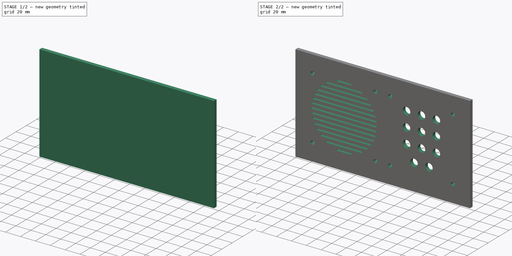
[diagram: build sequence overview — one tinted view per stage of 2, left to right]
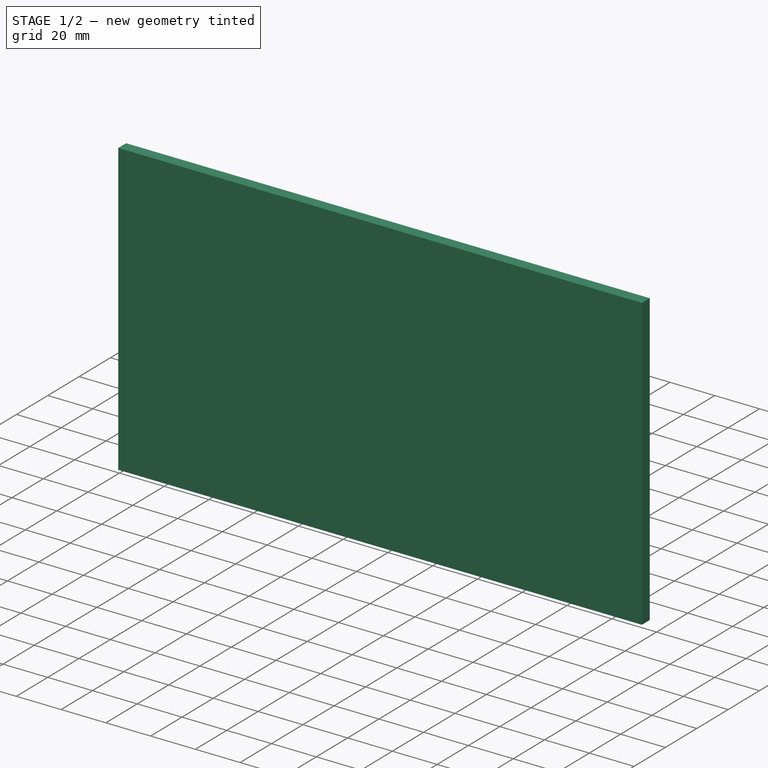
[diagram: stage 1 of 2 — iso view after this stage's code; geometry added in this stage tinted green]
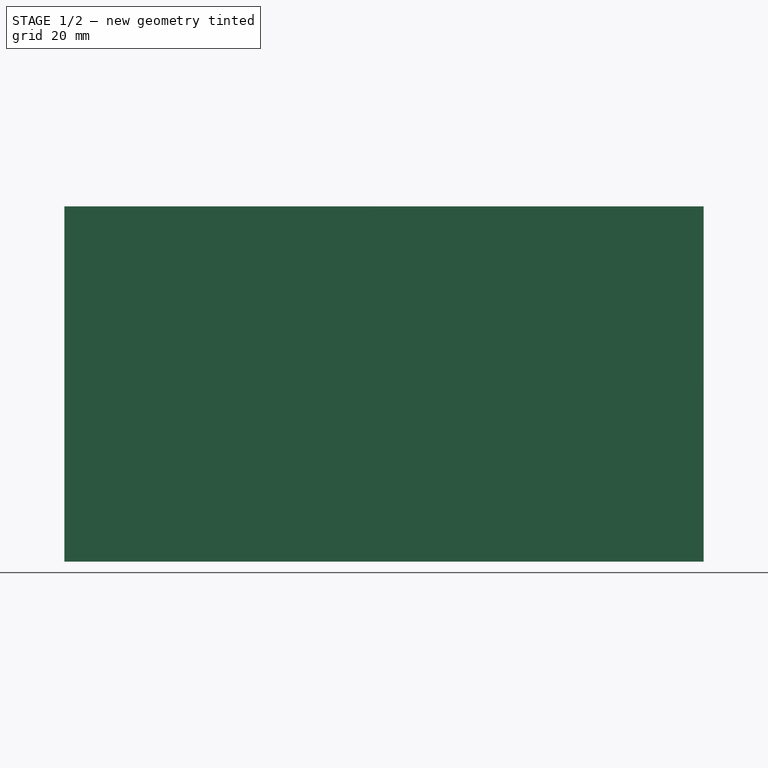
[diagram: stage 1 of 2 — front view after this stage's code; geometry added in this stage tinted green]
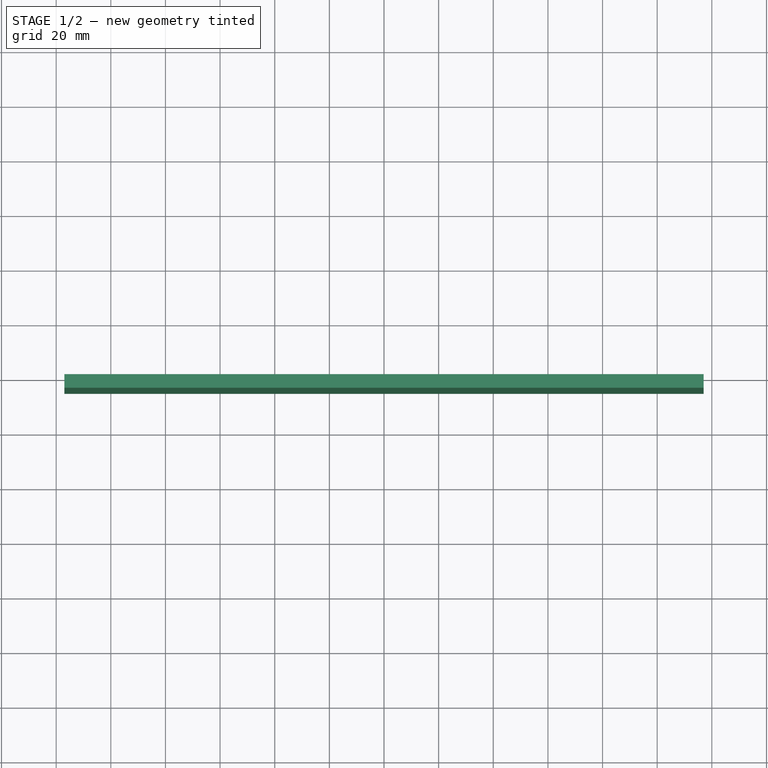
[diagram: stage 1 of 2 — top view after this stage's code; geometry added in this stage tinted green]
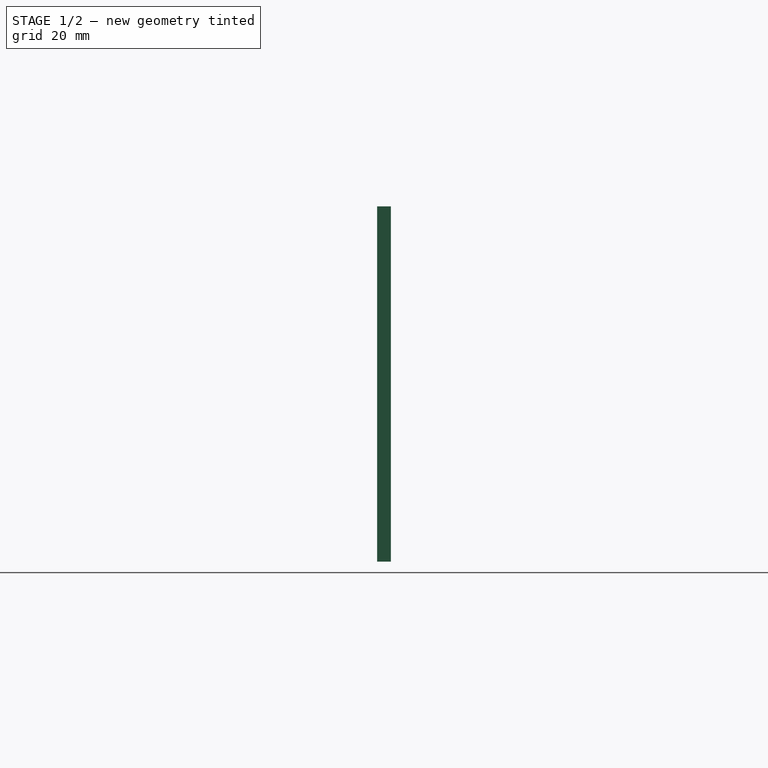
[diagram: stage 1 of 2 — right view after this stage's code; geometry added in this stage tinted green]
FCSTD DOCUMENT  (FreeCAD 0.18R16093 (Git))
Label: frontpanel
License: All rights reserved
LicenseURL: http://en.wikipedia.org/wiki/All_rights_reserved
objects: Sketcher::SketchObject×2, PartDesign::Pad×1, PartDesign::Pocket×1, PartDesign::Body×1, Drawing::FeatureViewPart×1, Drawing::FeaturePage×1
note: 7 computed .brp shape members not serialized (recipe doc carries the construction recipe); baked Part::Feature solids carry a one-line shape summary decoded from their .brp

FEATURE [Sketcher::SketchObject] Sketch002
  MapMode = 5
  Placement = pos=(0,-5,-5.17e-13) rot=(1,0,0;1.5708rad)
  sketch-geometry (81):
    g0: Circle CenterX=-94 CenterY=42 CenterZ=0 NormalX=0 NormalY=0 NormalZ=1 AngleXU=0 Radius=2.4
    g1: Circle CenterX=-10 CenterY=42 CenterZ=0 NormalX=0 NormalY=0 NormalZ=1 AngleXU=0 Radius=2.4
    g2: Circle CenterX=-10 CenterY=-42 CenterZ=0 NormalX=0 NormalY=0 NormalZ=1 AngleXU=0 Radius=2.4
    g3: Circle CenterX=-94 CenterY=-42 CenterZ=0 NormalX=0 NormalY=0 NormalZ=1 AngleXU=0 Radius=2.4
    g4: Circle CenterX=94 CenterY=42 CenterZ=0 NormalX=0 NormalY=0 NormalZ=1 AngleXU=0 Radius=2.4
    g5: Circle CenterX=10 CenterY=42 CenterZ=0 NormalX=0 NormalY=0 NormalZ=1 AngleXU=0 Radius=2.4
    g6: Circle CenterX=94 CenterY=-42 CenterZ=0 NormalX=0 NormalY=0 NormalZ=1 AngleXU=0 Radius=2.4
    g7: Circle CenterX=10 CenterY=-42 CenterZ=0 NormalX=0 NormalY=0 NormalZ=1 AngleXU=0 Radius=2.4
    g8: Circle [constr] CenterX=-52 CenterY=0 CenterZ=0 NormalX=0 NormalY=0 NormalZ=1 AngleXU=0 Radius=43
    g9: Circle CenterX=32 CenterY=30 CenterZ=0 NormalX=0 NormalY=0 NormalZ=1 AngleXU=0 Radius=5
    g10: Circle CenterX=52 CenterY=30 CenterZ=0 NormalX=0 NormalY=0 NormalZ=1 AngleXU=0 Radius=5
    g11: Circle CenterX=72 CenterY=30 CenterZ=0 NormalX=0 NormalY=0 NormalZ=1 AngleXU=0 Radius=5
    g12: Circle CenterX=32 CenterY=10 CenterZ=0 NormalX=0 NormalY=0 NormalZ=1 AngleXU=0 Radius=5
    g13: Circle CenterX=52 CenterY=10 CenterZ=0 NormalX=0 NormalY=0 NormalZ=1 AngleXU=0 Radius=5
    g14: Circle CenterX=72 CenterY=10 CenterZ=0 NormalX=0 NormalY=0 NormalZ=1 AngleXU=0 Radius=5
    g15: Circle CenterX=72 CenterY=-10 CenterZ=0 NormalX=0 NormalY=0 NormalZ=1 AngleXU=0 Radius=5
    g16: Circle CenterX=52 CenterY=-10 CenterZ=0 NormalX=0 NormalY=0 NormalZ=1 AngleXU=0 Radius=5
    g17: Circle CenterX=32 CenterY=-10 CenterZ=0 NormalX=0 NormalY=0 NormalZ=1 AngleXU=0 Radius=5
    g18: Circle CenterX=42 CenterY=-30 CenterZ=0 NormalX=0 NormalY=0 NormalZ=1 AngleXU=0 Radius=5
    g19: Circle CenterX=62 CenterY=-30 CenterZ=0 NormalX=0 NormalY=0 NormalZ=1 AngleXU=0 Radius=5
    g20: ArcOfCircle CenterX=-93.2916 CenterY=12 CenterZ=0 NormalX=0 NormalY=0 NormalZ=1 AngleXU=0 Radius=1 StartAngle=1.5708 EndAngle=4.71239
    g21: ArcOfCircle CenterX=-10.7084 CenterY=12 CenterZ=0 NormalX=0 NormalY=0 NormalZ=1 AngleXU=0 Radius=1 StartAngle=4.71239 EndAngle=7.85398
    g22: LineSegment StartX=-93.2916 StartY=11 StartZ=0 EndX=-10.7084 EndY=11 EndZ=0
    g23: LineSegment StartX=-93.2916 StartY=13 StartZ=0 EndX=-10.7084 EndY=13 EndZ=0
    g24: LineSegment [constr] StartX=-52 StartY=43 StartZ=0 EndX=-52 EndY=-43 EndZ=0
    g25: ArcOfCircle CenterX=-75.516 CenterY=36 CenterZ=0 NormalX=0 NormalY=0 NormalZ=1 AngleXU=0 Radius=1 StartAngle=1.5708 EndAngle=4.71239
    g26: ArcOfCircle CenterX=-28.484 CenterY=36 CenterZ=0 NormalX=0 NormalY=0 NormalZ=1 AngleXU=0 Radius=1 StartAngle=4.71239 EndAngle=7.85398
    g27: LineSegment StartX=-75.516 StartY=35 StartZ=0 EndX=-28.484 EndY=35 EndZ=0
    g28: LineSegment StartX=-75.516 StartY=37 StartZ=0 EndX=-28.484 EndY=37 EndZ=0
    g29: ArcOfCircle CenterX=-82.8058 CenterY=30 CenterZ=0 NormalX=0 NormalY=0 NormalZ=1 AngleXU=0 Radius=1 StartAngle=1.5708 EndAngle=4.71239
    g30: ArcOfCircle CenterX=-21.1942 CenterY=30 CenterZ=0 NormalX=0 NormalY=0 NormalZ=1 AngleXU=0 Radius=1 StartAngle=4.71239 EndAngle=7.85398
    g31: LineSegment StartX=-82.8058 StartY=29 StartZ=0 EndX=-21.1942 EndY=29 EndZ=0
    g32: LineSegment StartX=-82.8058 StartY=31 StartZ=0 EndX=-21.1942 EndY=31 EndZ=0
    g33: ArcOfCircle CenterX=-87.6791 CenterY=24 CenterZ=0 NormalX=0 NormalY=0 NormalZ=1 AngleXU=0 Radius=1 StartAngle=1.5708 EndAngle=4.71239
    g34: ArcOfCircle CenterX=-16.3209 CenterY=24 CenterZ=0 NormalX=0 NormalY=0 NormalZ=1 AngleXU=0 Radius=1 StartAngle=4.71239 EndAngle=7.85398
    g35: LineSegment StartX=-87.6791 StartY=23 StartZ=0 EndX=-16.3209 EndY=23 EndZ=0
    g36: LineSegment StartX=-87.6791 StartY=25 StartZ=0 EndX=-16.3209 EndY=25 EndZ=0
    g37: ArcOfCircle CenterX=-91.0512 CenterY=18 CenterZ=0 NormalX=0 NormalY=0 NormalZ=1 AngleXU=0 Radius=1 StartAngle=1.5708 EndAngle=4.71239
    g38: ArcOfCircle CenterX=-12.9488 CenterY=18 CenterZ=0 NormalX=0 NormalY=0 NormalZ=1 AngleXU=0 Radius=1 StartAngle=4.71239 EndAngle=7.85398
    g39: LineSegment StartX=-91.0512 StartY=17 StartZ=0 EndX=-12.9488 EndY=17 EndZ=0
    g40: LineSegment StartX=-91.0512 StartY=19 StartZ=0 EndX=-12.9488 EndY=19 EndZ=0
    g41: ArcOfCircle CenterX=-95 CenterY=0 CenterZ=0 NormalX=0 NormalY=0 NormalZ=1 AngleXU=0 Radius=1 StartAngle=1.5708 EndAngle=4.71239
    g42: ArcOfCircle CenterX=-9 CenterY=0 CenterZ=0 NormalX=0 NormalY=0 NormalZ=1 AngleXU=0 Radius=1 StartAngle=4.71239 EndAngle=7.85398
    g43: LineSegment StartX=-95 StartY=-1 StartZ=0 EndX=-9 EndY=-1 EndZ=0
    g44: LineSegment StartX=-95 StartY=1 StartZ=0 EndX=-9 EndY=1 EndZ=0
    g45: ArcOfCircle CenterX=-94.5793 CenterY=6 CenterZ=0 NormalX=0 NormalY=0 NormalZ=1 AngleXU=0 Radius=1 StartAngle=1.5708 EndAngle=4.71239
    g46: ArcOfCircle CenterX=-9.42066 CenterY=6 CenterZ=0 NormalX=0 NormalY=0 NormalZ=1 AngleXU=0 Radius=1 StartAngle=4.71239 EndAngle=7.85398
    g47: LineSegment StartX=-94.5793 StartY=5 StartZ=0 EndX=-9.42066 EndY=5 EndZ=0
    g48: LineSegment StartX=-94.5793 StartY=7 StartZ=0 EndX=-9.42066 EndY=7 EndZ=0
    g49: ArcOfCircle CenterX=-61.2195 CenterY=42 CenterZ=0 NormalX=0 NormalY=0 NormalZ=1 AngleXU=0 Radius=1 StartAngle=1.5708 EndAngle=4.71239
    g50: ArcOfCircle CenterX=-42.7805 CenterY=42 CenterZ=0 NormalX=0 NormalY=0 NormalZ=1 AngleXU=0 Radius=1 StartAngle=4.71239 EndAngle=7.85398
    g51: LineSegment StartX=-61.2195 StartY=41 StartZ=0 EndX=-42.7805 EndY=41 EndZ=0
    g52: LineSegment StartX=-61.2195 StartY=43 StartZ=0 EndX=-42.7805 EndY=43 EndZ=0
    g53: ArcOfCircle CenterX=-61.2195 CenterY=-42 CenterZ=0 NormalX=0 NormalY=0 NormalZ=1 AngleXU=0 Radius=1 StartAngle=1.5708 EndAngle=4.71239
    g54: ArcOfCircle CenterX=-42.7805 CenterY=-42 CenterZ=0 NormalX=0 NormalY=0 NormalZ=1 AngleXU=0 Radius=1 StartAngle=4.71239 EndAngle=7.85398
    g55: LineSegment StartX=-61.2195 StartY=-43 StartZ=0 EndX=-42.7805 EndY=-43 EndZ=0
    g56: LineSegment StartX=-61.2195 StartY=-41 StartZ=0 EndX=-42.7805 EndY=-41 EndZ=0
    g57: ArcOfCircle CenterX=-75.516 CenterY=-36 CenterZ=0 NormalX=0 NormalY=0 NormalZ=1 AngleXU=0 Radius=1 StartAngle=1.5708 EndAngle=4.71239
    g58: ArcOfCircle CenterX=-28.484 CenterY=-36 CenterZ=0 NormalX=0 NormalY=0 NormalZ=1 AngleXU=0 Radius=1 StartAngle=4.71239 EndAngle=7.85398
    g59: LineSegment StartX=-75.516 StartY=-37 StartZ=0 EndX=-28.484 EndY=-37 EndZ=0
    g60: LineSegment StartX=-75.516 StartY=-35 StartZ=0 EndX=-28.484 EndY=-35 EndZ=0
    g61: ArcOfCircle CenterX=-82.8058 CenterY=-30 CenterZ=0 NormalX=0 NormalY=0 NormalZ=1 AngleXU=0 Radius=1 StartAngle=1.5708 EndAngle=4.71239
    g62: ArcOfCircle CenterX=-21.1942 CenterY=-30 CenterZ=0 NormalX=0 NormalY=0 NormalZ=1 AngleXU=0 Radius=1 StartAngle=4.71239 EndAngle=7.85398
    g63: LineSegment StartX=-82.8058 StartY=-31 StartZ=0 EndX=-21.1942 EndY=-31 EndZ=0
    g64: LineSegment StartX=-82.8058 StartY=-29 StartZ=0 EndX=-21.1942 EndY=-29 EndZ=0
    g65: ArcOfCircle CenterX=-87.6791 CenterY=-24 CenterZ=0 NormalX=0 NormalY=0 NormalZ=1 AngleXU=0 Radius=1 StartAngle=1.5708 EndAngle=4.71239
    g66: ArcOfCircle CenterX=-16.3209 CenterY=-24 CenterZ=0 NormalX=0 NormalY=0 NormalZ=1 AngleXU=0 Radius=1 StartAngle=4.71239 EndAngle=7.85398
    g67: LineSegment StartX=-87.6791 StartY=-25 StartZ=0 EndX=-16.3209 EndY=-25 EndZ=0
    g68: LineSegment StartX=-87.6791 StartY=-23 StartZ=0 EndX=-16.3209 EndY=-23 EndZ=0
    g69: ArcOfCircle CenterX=-91.0512 CenterY=-18 CenterZ=0 NormalX=0 NormalY=0 NormalZ=1 AngleXU=0 Radius=1 StartAngle=1.5708 EndAngle=4.71239
    g70: ArcOfCircle CenterX=-12.9488 CenterY=-18 CenterZ=0 NormalX=0 NormalY=0 NormalZ=1 AngleXU=0 Radius=1 StartAngle=4.71239 EndAngle=7.85398
    g71: LineSegment StartX=-91.0512 StartY=-19 StartZ=0 EndX=-12.9488 EndY=-19 EndZ=0
    g72: LineSegment StartX=-91.0512 StartY=-17 StartZ=0 EndX=-12.9488 EndY=-17 EndZ=0
    g73: ArcOfCircle CenterX=-93.2916 CenterY=-12 CenterZ=0 NormalX=0 NormalY=0 NormalZ=1 AngleXU=0 Radius=1 StartAngle=1.5708 EndAngle=4.71239
    g74: ArcOfCircle CenterX=-10.7084 CenterY=-12 CenterZ=0 NormalX=0 NormalY=0 NormalZ=1 AngleXU=0 Radius=1 StartAngle=4.71239 EndAngle=7.85398
    g75: LineSegment StartX=-93.2916 StartY=-13 StartZ=0 EndX=-10.7084 EndY=-13 EndZ=0
    g76: LineSegment StartX=-93.2916 StartY=-11 StartZ=0 EndX=-10.7084 EndY=-11 EndZ=0
    g77: ArcOfCircle CenterX=-94.5793 CenterY=-6 CenterZ=0 NormalX=0 NormalY=0 NormalZ=1 AngleXU=0 Radius=1 StartAngle=1.5708 EndAngle=4.71239
    g78: ArcOfCircle CenterX=-9.42066 CenterY=-6 CenterZ=0 NormalX=0 NormalY=0 NormalZ=1 AngleXU=0 Radius=1 StartAngle=4.71239 EndAngle=7.85398
    g79: LineSegment StartX=-94.5793 StartY=-7 StartZ=0 EndX=-9.42066 EndY=-7 EndZ=0
    g80: LineSegment StartX=-94.5793 StartY=-5 StartZ=0 EndX=-9.42066 EndY=-5 EndZ=0
  constraints (198):
    c: Radius(g0) = 2.4
    c: Radius(g1) = 2.4
    c: Radius(g2) = 2.4
    c: Radius(g3) = 2.4
    c: DistanceX(g0,g1) = 84
    c: DistanceY(g3,g0) = 84
    c: DistanceX(g1,g-1) = 10
    c: Symmetric(g0,g3,g-1)
    c: Radius(g4) = 2.4
    c: Radius(g5) = 2.4
    c: Radius(g7) = 2.4
    c: Radius(g6) = 2.4
    c: DistanceX(g-1,g5) = 10
    c: DistanceX(g5,g4) = 84
    c: Horizontal(g0,g1)
    c: Horizontal(g1,g5)
    c: Horizontal(g5,g4)
    c: Horizontal(g3,g2)
    c: Horizontal(g2,g7)
    c: Horizontal(g7,g6)
    c: Vertical(g1,g2)
    c: Vertical(g5,g7)
    c: Vertical(g6,g4)
    c: Radius(g8) = 43
    c: PointOnObject(g8,g-1)
    c: DistanceX(g8,g1) = 42
    c: Radius(g9) = 5
    c: Radius(g10) = 5
    c: Radius(g11) = 5
    c: Radius(g14) = 5
    c: Radius(g13) = 5
    c: Radius(g12) = 5
    c: Radius(g17) = 5
    c: Radius(g16) = 5
    c: Radius(g15) = 5
    c: Radius(g19) = 5
    c: Radius(g18) = 5
    c: DistanceX(g-1,g17) = 32
    c: Vertical(g17,g12)
    c: Vertical(g12,g9)
    c: DistanceX(g17,g16) = 20
    c: Vertical(g16,g13)
    c: Vertical(g13,g10)
    c: DistanceX(g16,g15) = 20
    c: Vertical(g15,g14)
    c: Vertical(g14,g11)
    c: Horizontal(g9,g10)
    c: Horizontal(g10,g11)
    c: Horizontal(g12,g13)
    c: Horizontal(g13,g14)
    c: Horizontal(g17,g16)
    c: Horizontal(g16,g15)
    c: Horizontal(g18,g19)
    c: DistanceX(g17,g18) = 10
    c: DistanceX(g18,g19) = 20
    c: DistanceY(g-1,g14) = 10
    c: DistanceY(g14,g11) = 20
    c: DistanceY(g15,g-1) = 10
    c: DistanceY(g19,g15) = 20
    c: Tangent(g20,g23) = 1.5708
    c: Tangent(g20,g22) = -1.5708
    c: Tangent(g22,g21) = -1.5708
    c: Tangent(g23,g21) = 1.5708
    c: Equal(g20,g21)
    c: Vertical(g24)
    c: PointOnObject(g8,g24)
    c: Symmetric(g20,g21,g24)
    c: Radius(g21) = 1
    c: Tangent(g25,g28) = 1.5708
    c: Tangent(g25,g27) = -1.5708
    c: Tangent(g27,g26) = -1.5708
    c: Tangent(g28,g26) = 1.5708
    c: Equal(g25,g26)
    c: Symmetric(g26,g25,g24)
    c: Radius(g26) = 1
    c: DistanceY(g8,g26) = 36
    c: Tangent(g29,g32) = 1.5708
    c: Tangent(g29,g31) = -1.5708
    c: Tangent(g31,g30) = -1.5708
    c: Tangent(g32,g30) = 1.5708
    c: Equal(g29,g30)
    c: Radius(g30) = 1
    c: Symmetric(g29,g30,g24)
    c: DistanceY(g8,g30) = 30
    c: PointOnObject(g20,g8)
    c: PointOnObject(g25,g8)
    c: PointOnObject(g29,g8)
    c: Tangent(g33,g36) = 1.5708
    c: Tangent(g33,g35) = -1.5708
    c: Tangent(g35,g34) = -1.5708
    c: Tangent(g36,g34) = 1.5708
    c: Horizontal(g35)
    c: PointOnObject(g33,g8)
    c: Radius(g34) = 1
    c: Symmetric(g33,g34,g24)
    c: DistanceY(g8,g34) = 24
    c: Tangent(g37,g40) = 1.5708
    c: Tangent(g37,g39) = -1.5708
    c: Tangent(g39,g38) = -1.5708
    c: Tangent(g40,g38) = 1.5708
    c: Equal(g37,g38)
    c: Symmetric(g38,g37,g24)
    c: Radius(g37) = 1
    c: PointOnObject(g37,g8)
    c: DistanceY(g8,g38) = 18
    c: Tangent(g41,g44) = 1.5708
    c: Tangent(g41,g43) = -1.5708
    c: Tangent(g43,g42) = -1.5708
    c: Tangent(g44,g42) = 1.5708
    c: Equal(g41,g42)
    c: Radius(g41) = 1
    c: Symmetric(g42,g41,g24)
    c: PointOnObject(g41,g8)
    c: PointOnObject(g41,g-1)
    c: Tangent(g45,g48) = 1.5708
    c: Tangent(g45,g47) = -1.5708
    c: Tangent(g47,g46) = -1.5708
    c: Tangent(g48,g46) = 1.5708
    c: Equal(g45,g46)
    c: Symmetric(g45,g46,g24)
    c: PointOnObject(g45,g8)
    c: Radius(g46) = 1
    c: DistanceY(g8,g46) = 6
    c: DistanceY(g8,g21) = 12
    c: Tangent(g49,g52) = 1.5708
    c: Tangent(g49,g51) = -1.5708
    c: Tangent(g51,g50) = -1.5708
    c: Tangent(g52,g50) = 1.5708
    c: Equal(g49,g50)
    c: Symmetric(g49,g50,g24)
    c: Radius(g50) = 1
    c: PointOnObject(g49,g8)
    c: DistanceY(g8,g50) = 42
    c: Tangent(g53,g56) = 1.5708
    c: Tangent(g53,g55) = -1.5708
    c: Tangent(g55,g54) = -1.5708
    c: Tangent(g56,g54) = 1.5708
    c: Equal(g53,g54)
    c: Symmetric(g53,g54,g24)
    c: PointOnObject(g53,g8)
    c: DistanceY(g54,g8) = 42
    c: Radius(g54) = 1
    c: Tangent(g57,g60) = 1.5708
    c: Tangent(g57,g59) = -1.5708
    c: Tangent(g59,g58) = -1.5708
    c: Tangent(g60,g58) = 1.5708
    c: Equal(g57,g58)
    c: Radius(g58) = 1
    c: Symmetric(g57,g58,g24)
    c: PointOnObject(g57,g8)
    c: DistanceY(g58,g8) = 36
    c: Tangent(g61,g64) = 1.5708
    c: Tangent(g61,g63) = -1.5708
    c: Tangent(g63,g62) = -1.5708
    c: Tangent(g64,g62) = 1.5708
    c: Equal(g61,g62)
    c: Symmetric(g61,g62,g24)
    c: DistanceY(g62,g8) = 30
    c: Radius(g62) = 1
    c: PointOnObject(g61,g8)
    c: Tangent(g65,g68) = 1.5708
    c: Tangent(g65,g67) = -1.5708
    c: Tangent(g67,g66) = -1.5708
    c: Tangent(g68,g66) = 1.5708
    c: Equal(g65,g66)
    c: Radius(g66) = 1
    c: Symmetric(g65,g66,g24)
    c: DistanceY(g66,g8) = 24
    c: PointOnObject(g65,g8)
    c: Tangent(g69,g72) = 1.5708
    c: Tangent(g69,g71) = -1.5708
    c: Tangent(g71,g70) = -1.5708
    c: Tangent(g72,g70) = 1.5708
    c: Equal(g69,g70)
    c: Radius(g70) = 1
    c: DistanceY(g70,g8) = 18
    c: Symmetric(g69,g70,g24)
    c: PointOnObject(g69,g8)
    c: Tangent(g73,g76) = 1.5708
    c: Tangent(g73,g75) = -1.5708
    c: Tangent(g75,g74) = -1.5708
    c: Tangent(g76,g74) = 1.5708
    c: Equal(g73,g74)
    c: Symmetric(g73,g74,g24)
    c: DistanceY(g74,g8) = 12
    c: Radius(g74) = 1
    c: PointOnObject(g73,g8)
    c: Tangent(g77,g80) = 1.5708
    c: Tangent(g77,g79) = -1.5708
    c: Tangent(g79,g78) = -1.5708
    c: Tangent(g80,g78) = 1.5708
    c: Equal(g77,g78)
    c: Symmetric(g77,g78,g24)
    c: DistanceY(g78,g8) = 6
    c: Radius(g78) = 1
    c: PointOnObject(g77,g8)
    c: PointOnObject(g24,g8)
    c: PointOnObject(g24,g8)
FEATURE [Sketcher::SketchObject] Sketch
  MapMode = 5
  Placement = pos=(0,0,0) rot=(1,0,0;1.5708rad)
  sketch-geometry (4):
    g0: LineSegment StartX=-117 StartY=65 StartZ=0 EndX=117 EndY=65 EndZ=0
    g1: LineSegment StartX=117 StartY=65 StartZ=0 EndX=117 EndY=-65 EndZ=0
    g2: LineSegment StartX=117 StartY=-65 StartZ=0 EndX=-117 EndY=-65 EndZ=0
    g3: LineSegment StartX=-117 StartY=-65 StartZ=0 EndX=-117 EndY=65 EndZ=0
  constraints (10):
    c: Coincident(g0,g1)
    c: Coincident(g1,g2)
    c: Coincident(g2,g3)
    c: Coincident(g3,g0)
    c: DistanceY(g3,g3) = 130
    c: DistanceX(g2,g2) = 234
    c: Symmetric(g0,g0,g-2)
    c: Symmetric(g0,g2,g-1)
    c: Parallel(g0,g2)
    c: Parallel(g3,g1)
FEATURE [PartDesign::Pad] Pad
  Length = 5
  Length2 = 100
  Placement = pos=(0,0,0) rot=(1,0,0;1.5708rad)
  Profile = -> Sketch
  Type = 0
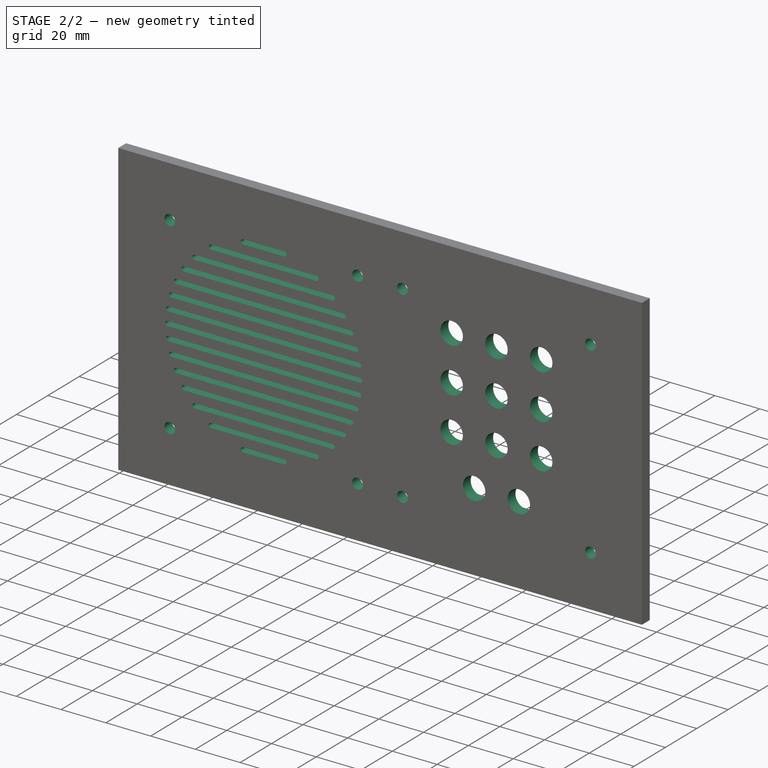
[diagram: stage 2 of 2 — iso view after this stage's code; geometry added in this stage tinted green]
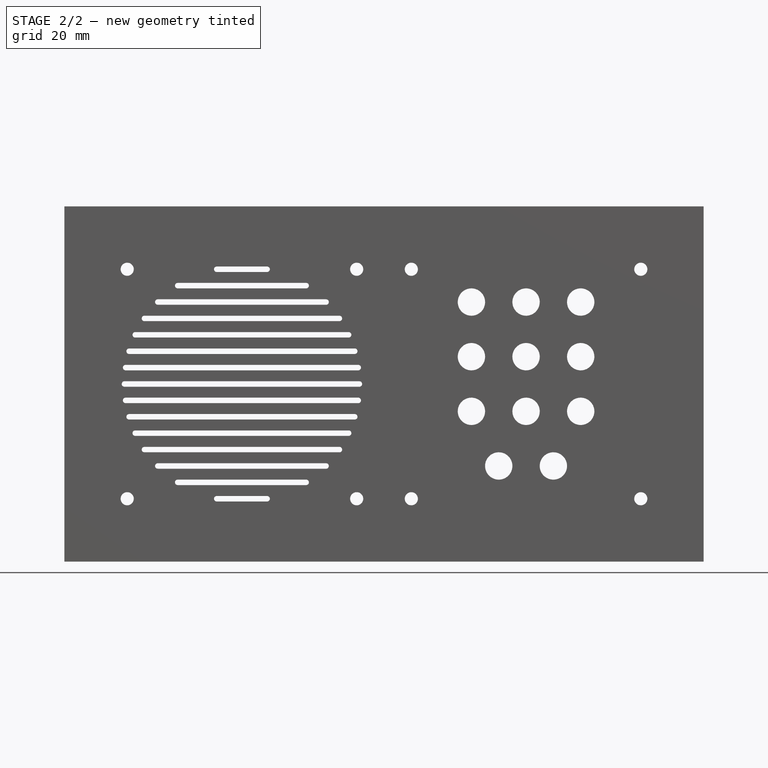
[diagram: stage 2 of 2 — front view after this stage's code; geometry added in this stage tinted green]
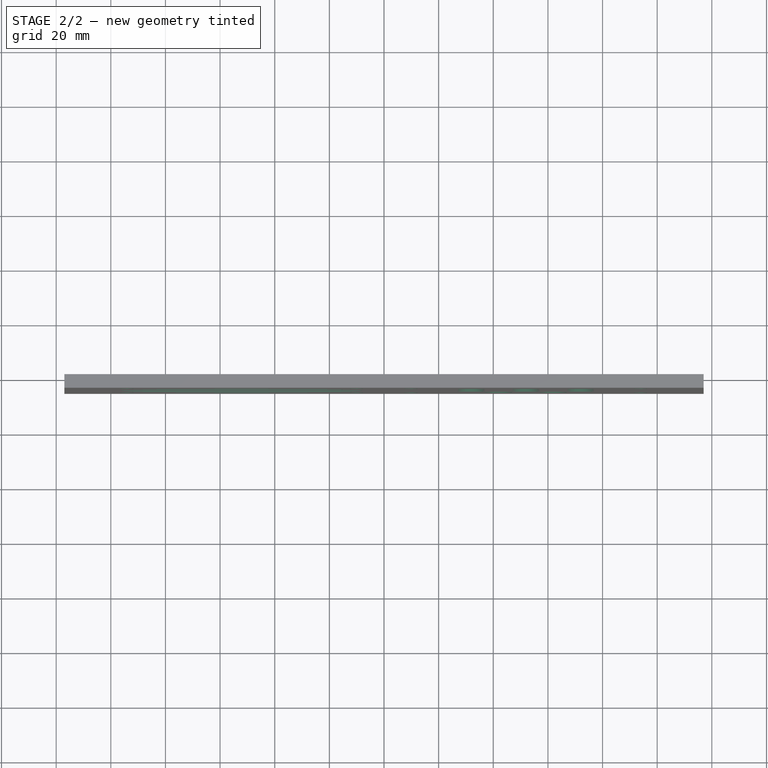
[diagram: stage 2 of 2 — top view after this stage's code; geometry added in this stage tinted green]
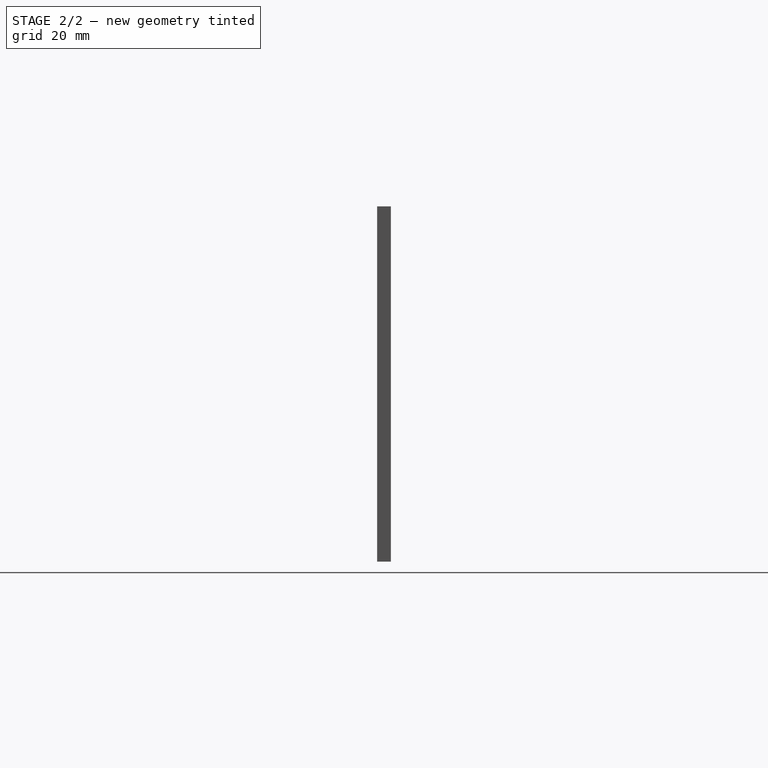
[diagram: stage 2 of 2 — right view after this stage's code; geometry added in this stage tinted green]
FEATURE [PartDesign::Pocket] Pocket
  BaseFeature = -> Pad
  Length = 5
  Length2 = 100
  Placement = pos=(0,0,0) rot=(1,0,0;1.5708rad)
  Profile = -> Sketch002
  Type = 0
FEATURE [PartDesign::Body] Body  label="frontPanel"
  Group = -> [Sketch,Pad,Sketch002,Pocket]
  Origin = -> Origin
  Tip = -> Pocket
FEATURE [Drawing::FeatureViewPart] View
  Direction = (0,-1,0)
  HiddenWidth = 0.15
  LineWidth = 0.1
  Rotation = 90
  ShowHiddenLines = false
  ShowSmoothLines = false
  Source = -> Body
  Tolerance = 0.05
  ViewResult = <blob: 4083 chars omitted>
  Visible = true
  X = 150
  Y = 85
FEATURE [Drawing::FeaturePage] Page
  EditableTexts = Andreas Renggli | MusicBox | FreeCAD DRAWING | A4 | 1 / 1 | 1:1 | - | - | 08.12.2018  | REV A
  Group = -> [View]
  Template = <path>
note: 1 file-system path scrubbed to <path> (originals preserved in the JSON sidecar)
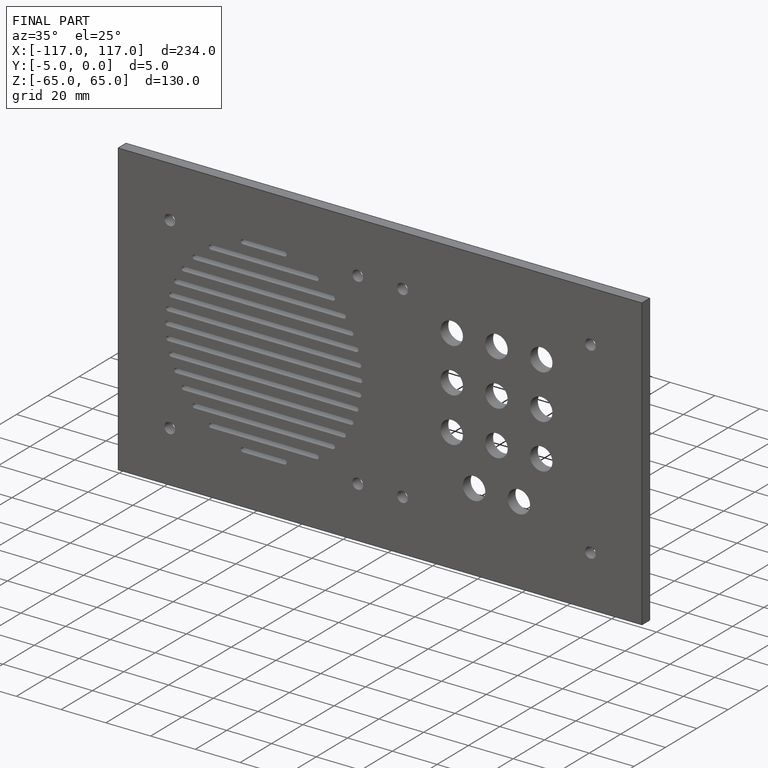
[diagram: finished part — iso view with bounding-box wireframe]
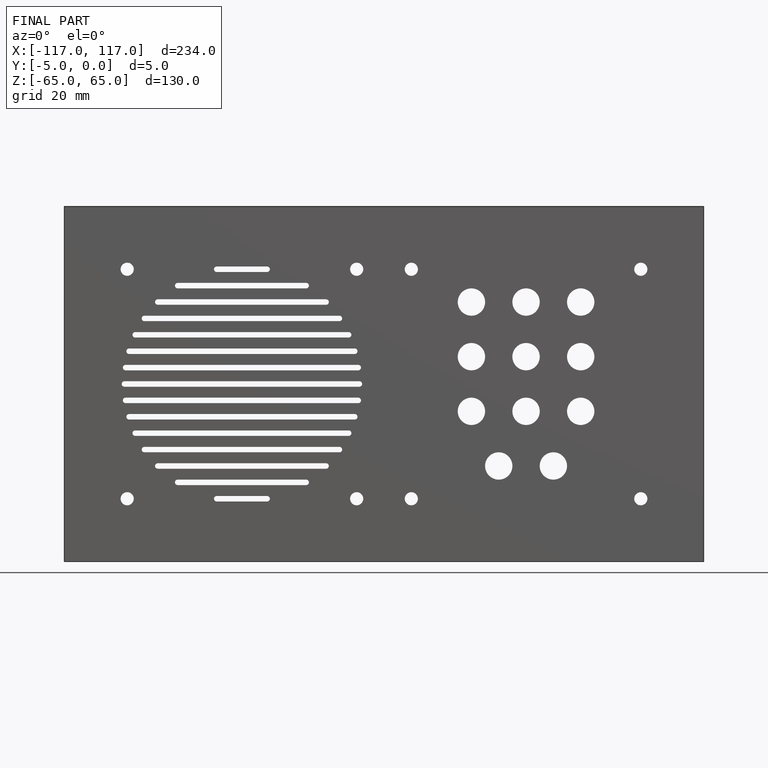
[diagram: finished part — front view with bounding-box wireframe]
